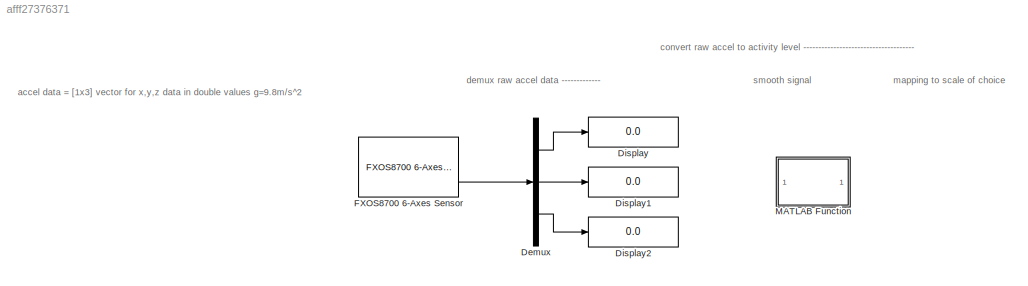
MODEL slx_afff27376371
KIND model
CONFIG AbsTol = auto
CONFIG EnableMultiTasking = on
CONFIG FixedStep = 1e-3
CONFIG MaxStep = auto
CONFIG MinStep = auto
CONFIG RelTol = 1e-3
CONFIG SampleTimeConstraint = Unconstrained
CONFIG Solver = FixedStepAuto
CONFIG SolverName = FixedStepAuto
CONFIG StartTime = 0.0
CONFIG StopTime = 10.0
BLOCK [Demux] Demux
  Outputs = 3
  Ports = [1, 3]
BLOCK [Display] Display
  Decimation = 1
  Format = long
  Ports = [1]
BLOCK [Display] Display1
  Decimation = 1
  Format = long
  Ports = [1]
BLOCK [Display] Display2
  Decimation = 1
  Format = long
  Ports = [1]
BLOCK [Reference] FXOS8700 6-Axes Sensor  REF=frdmk64flib/FXOS8700 6-Axes Sensor
  Ports = [0, 2]
  SourceBlock = frdmk64flib/FXOS8700 6-Axes Sensor
  SourceProductBaseCode = EC_FRDM_K64F
  SourceType = freedomk64f.fxos8700
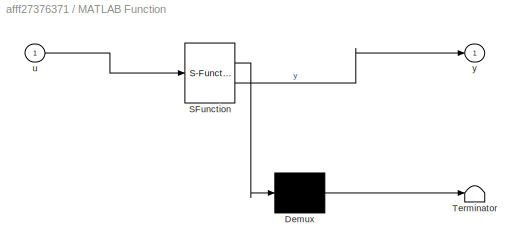
BLOCK [SubSystem] MATLAB Function
  ErrorFcn = Stateflow.Translate.translate
  PermitHierarchicalResolution = ExplicitOnly
  Ports = [1, 1]
  RequestExecContextInheritance = off
  SFBlockType = MATLAB Function
  TreatAsAtomicUnit = on
BLOCK [Demux] MATLAB Function/ Demux 
  Outputs = 1
  Ports = [1, 1]
BLOCK [S-Function] MATLAB Function/ SFunction 
  EnableBusSupport = off
  FunctionName = sf_sfun
  PortCounts = [1 2]
  Ports = [1, 2]
  SFcnIsStateOwnerBlock = off
  SFunctionDeploymentMode = off
  Tag = Stateflow S-Function 2
BLOCK [Terminator] MATLAB Function/ Terminator 
BLOCK [Inport] MATLAB Function/u
BLOCK [Outport] MATLAB Function/y
ANNOTATION (root): accel data = [1x3] vector for x,y,z data in double values g=9.8m/s^2
ANNOTATION (root): convert raw accel to activity level -------------------------------------
ANNOTATION (root): demux raw accel data -------------
ANNOTATION (root): mapping to scale of choice
ANNOTATION (root): smooth signal
LINE Demux:1 -> Display:1
LINE Demux:2 -> Display1:1
LINE Demux:3 -> Display2:1
LINE FXOS8700 6-Axes Sensor:2 -> Demux:1
CHART MATLAB Function states=1 transitions=1
  STATE_LABEL 'eML_blk_kernel()'
  STATE_LABEL 'SCRIPT:\nfunction y = SignalSmoothing(u)\n%{ \nu = original signal --> plot (t, u(t))\ny = smoothed signal --> plot (t, y(t))\n%} \n\n\n\n\n\n\n\ny = u;\n\n\n%{\nEXAMPLE FROM MATLAB:\nhttps://www.mathworks.com/help/signal/ug/signal-smoothing.html \n\nORIGINAL SIGNAL:\n\nload bostemp\ndays = (1:31*24)/24;\nplot(days, tempC)\naxis tight\nylabel("Temperature (\\circC)")\nxlabel("Time elapsed from Jan 1, 2011 (days)")\ntitle("Log...<+442ch>'
CHART  states=0 transitions=0
